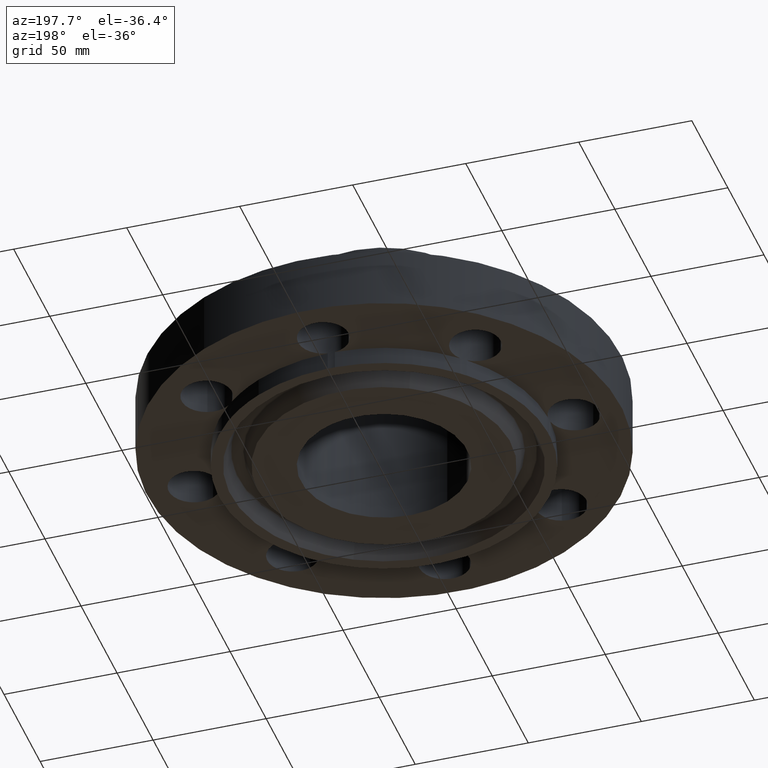
[diagram: clean part render]
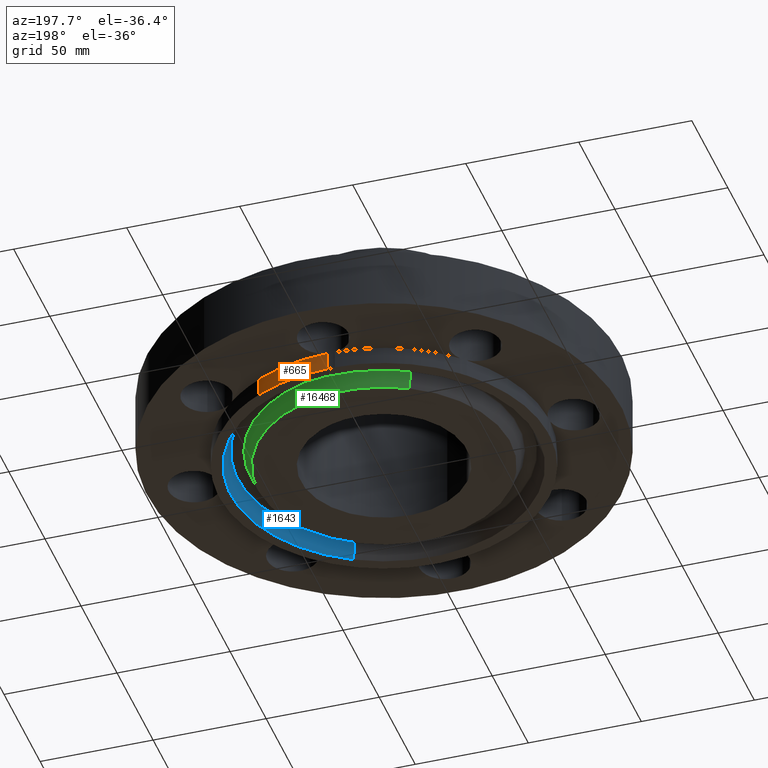
[diagram: same view with three faces highlighted in distinct colors, each labeled with its STEP entity id]
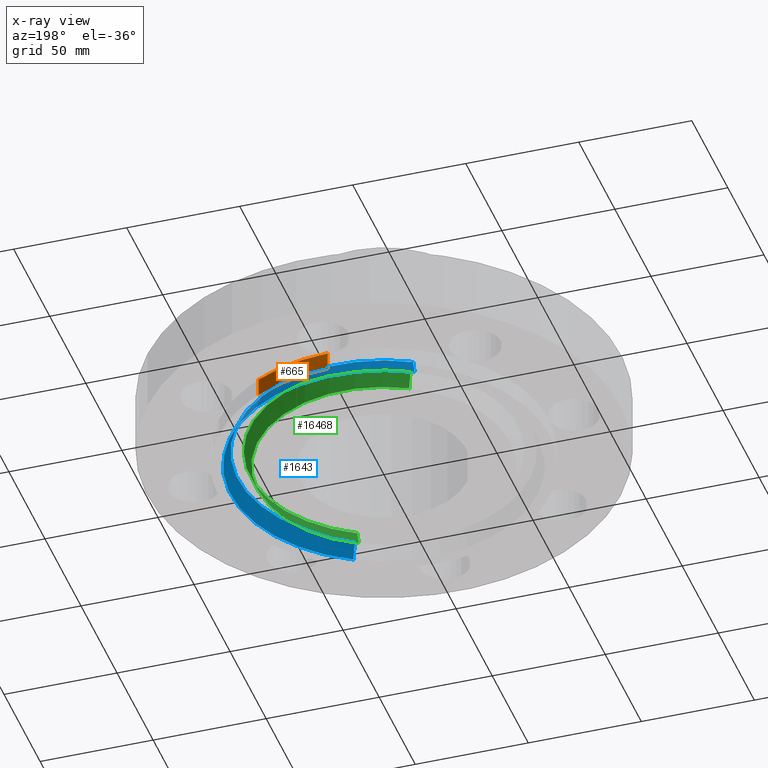
[diagram: x-ray of the same camera — body ghosted, the three highlighted faces saturated]
A machine part, auxiliary view with three faces highlighted in distinct colors.
The next image is the same camera in x-ray (body ghosted, the three faces saturated) — at least one of them is partly hidden behind the body in this view.
Their STEP definitions:

[orange] entity #665 — the highlighted cylindrical surface (partial cylindrical patch) has radius 73.025 mm, axis along (0, 0, -1).
#252=AXIS2_PLACEMENT_3D('Circle Axis2P3D',#250,#251,$) ;
#645=AXIS2_PLACEMENT_3D('Cylinder Axis2P3D',#642,#643,#644) ;
#656=AXIS2_PLACEMENT_3D('Circle Axis2P3D',#654,#655,$) ;
#92=CARTESIAN_POINT('Vertex',(0.0616409036858,2.87433912388,-3.35309033382E-011)) ;
#95=CARTESIAN_POINT('Line Origine',(0.0616409036858,2.87433912388,0.373500000005)) ;
#99=CARTESIAN_POINT('Vertex',(0.0616409036858,2.87433912388,-0.312999999991)) ;
#247=CARTESIAN_POINT('Vertex',(1.37834842349,2.52304986544,-7.95024588595E-013)) ;
#250=CARTESIAN_POINT('Axis2P3D Location',(-3.52003640584E-010,-9.5536778838E-010,0.)) ;
#642=CARTESIAN_POINT('Axis2P3D Location',(0.,0.,1.37350000001)) ;
#647=CARTESIAN_POINT('Line Origine',(1.37834842349,2.52304986544,-0.156500000016)) ;
#651=CARTESIAN_POINT('Vertex',(1.37834842349,2.52304986544,-0.313000000031)) ;
#654=CARTESIAN_POINT('Axis2P3D Location',(0.,0.,-0.313000000031)) ;
#96=DIRECTION('Vector Direction',(0.,0.,-0.0393700787402)) ;
#251=DIRECTION('Axis2P3D Direction',(0.,0.,-0.0393700787402)) ;
#643=DIRECTION('Axis2P3D Direction',(0.,0.,-0.0393700787402)) ;
#644=DIRECTION('Axis2P3D XDirection',(-0.0188750212049,-0.0345504945626,0.)) ;
#648=DIRECTION('Vector Direction',(0.,0.,-0.0393700787402)) ;
#655=DIRECTION('Axis2P3D Direction',(0.,0.,-0.0393700787402)) ;
#97=VECTOR('Line Direction',#96,0.0393700787402) ;
#649=VECTOR('Line Direction',#648,0.0393700787402) ;
#660=ORIENTED_EDGE('',*,*,#254,.T.) ;
#661=ORIENTED_EDGE('',*,*,#653,.F.) ;
#662=ORIENTED_EDGE('',*,*,#658,.F.) ;
#663=ORIENTED_EDGE('',*,*,#101,.F.) ;
#665=ADVANCED_FACE('PartBody',(#664),#646,.T.) ;
#253=CIRCLE('generated circle',#252,2.875000001) ;
#657=CIRCLE('generated circle',#656,2.87500000001) ;
#646=CYLINDRICAL_SURFACE('generated cylinder',#645,2.87500000001) ;
#101=EDGE_CURVE('',#93,#100,#98,.T.) ;
#254=EDGE_CURVE('',#93,#248,#253,.T.) ;
#653=EDGE_CURVE('',#652,#248,#650,.F.) ;
#658=EDGE_CURVE('',#100,#652,#657,.T.) ;
#659=EDGE_LOOP('',(#660,#661,#662,#663)) ;
#664=FACE_OUTER_BOUND('',#659,.T.) ;
#98=LINE('Line',#95,#97) ;
#650=LINE('Line',#647,#649) ;
#93=VERTEX_POINT('',#92) ;
#100=VERTEX_POINT('',#99) ;
#248=VERTEX_POINT('',#247) ;
#652=VERTEX_POINT('',#651) ;

[blue] entity #1643 — the highlighted conical surface has half-angle 23 deg.
#819=AXIS2_PLACEMENT_3D('Circle Axis2P3D',#817,#818,$) ;
#1630=AXIS2_PLACEMENT_3D('Cone Axis2P3D',#1627,#1628,#1629) ;
#1634=AXIS2_PLACEMENT_3D('Circle Axis2P3D',#1632,#1633,$) ;
#812=CARTESIAN_POINT('Vertex',(1.28102503915,-2.3449006054,-0.313000000001)) ;
#814=CARTESIAN_POINT('Vertex',(-1.28102503915,2.34490060534,-0.313000000001)) ;
#817=CARTESIAN_POINT('Axis2P3D Location',(4.3665228913E-011,-5.74532547521E-012,-0.313000000001)) ;
#1594=CARTESIAN_POINT('Line Origine',(-1.25109847736,2.29012040146,-0.165943667509)) ;
#1598=CARTESIAN_POINT('Vertex',(-1.22117191556,2.23534019754,-0.0188873350177)) ;
#1605=CARTESIAN_POINT('Vertex',(1.22117191556,-2.23534019754,-0.0188873350179)) ;
#1608=CARTESIAN_POINT('Line Origine',(1.25109847736,-2.29012040146,-0.165943667509)) ;
#1627=CARTESIAN_POINT('Axis2P3D Location',(0.,0.,-0.0188873350169)) ;
#1632=CARTESIAN_POINT('Axis2P3D Location',(0.,0.,-0.0188873350169)) ;
#818=DIRECTION('Axis2P3D Direction',(0.,0.,-0.0393700787402)) ;
#1595=DIRECTION('Vector Direction',(-0.00737505833566,0.0134999537303,-0.0362403485611)) ;
#1609=DIRECTION('Vector Direction',(0.00737505833566,-0.0134999537303,-0.0362403485611)) ;
#1628=DIRECTION('Axis2P3D Direction',(-0.,-0.,-0.0393700787402)) ;
#1629=DIRECTION('Axis2P3D XDirection',(-0.0188750212049,0.0345504945626,0.)) ;
#1633=DIRECTION('Axis2P3D Direction',(-0.,0.,-0.0393700787402)) ;
#1596=VECTOR('Line Direction',#1595,0.0393700787402) ;
#1610=VECTOR('Line Direction',#1609,0.0393700787402) ;
#1638=ORIENTED_EDGE('',*,*,#821,.T.) ;
#1639=ORIENTED_EDGE('',*,*,#1612,.T.) ;
#1640=ORIENTED_EDGE('',*,*,#1636,.T.) ;
#1641=ORIENTED_EDGE('',*,*,#1600,.F.) ;
#1643=ADVANCED_FACE('PartBody',(#1642),#1631,.F.) ;
#820=CIRCLE('generated circle',#819,2.672) ;
#1635=CIRCLE('generated circle',#1634,2.5471565806) ;
#1631=CONICAL_SURFACE('Cone',#1630,2.5471565806,0.401425727959) ;
#821=EDGE_CURVE('',#815,#813,#820,.T.) ;
#1600=EDGE_CURVE('',#815,#1599,#1597,.F.) ;
#1612=EDGE_CURVE('',#813,#1606,#1611,.F.) ;
#1636=EDGE_CURVE('',#1606,#1599,#1635,.F.) ;
#1637=EDGE_LOOP('',(#1638,#1639,#1640,#1641)) ;
#1642=FACE_OUTER_BOUND('',#1637,.T.) ;
#1597=LINE('Line',#1594,#1596) ;
#1611=LINE('Line',#1608,#1610) ;
#813=VERTEX_POINT('',#812) ;
#815=VERTEX_POINT('',#814) ;
#1599=VERTEX_POINT('',#1598) ;
#1606=VERTEX_POINT('',#1605) ;

[green] entity #16468 — the highlighted conical surface has half-angle 23 deg.
#5607=AXIS2_PLACEMENT_3D('Circle Axis2P3D',#5605,#5606,$) ;
#16441=AXIS2_PLACEMENT_3D('Cone Axis2P3D',#16438,#16439,#16440) ;
#16459=AXIS2_PLACEMENT_3D('Circle Axis2P3D',#16457,#16458,$) ;
#5602=CARTESIAN_POINT('Vertex',(1.11602758514,-2.0428747917,-0.0188873350179)) ;
#5605=CARTESIAN_POINT('Axis2P3D Location',(0.,0.,-0.0188873350179)) ;
#5609=CARTESIAN_POINT('Vertex',(-1.11602758514,2.0428747917,-0.0188873350164)) ;
#16438=CARTESIAN_POINT('Axis2P3D Location',(0.,0.,-0.373000000001)) ;
#16443=CARTESIAN_POINT('Line Origine',(-1.08610102335,1.98809458778,-0.16594366751)) ;
#16447=CARTESIAN_POINT('Vertex',(-1.05617446158,1.93331438389,-0.313000000001)) ;
#16450=CARTESIAN_POINT('Line Origine',(1.08610102335,-1.98809458778,-0.16594366751)) ;
#16454=CARTESIAN_POINT('Vertex',(1.05617446158,-1.93331438387,-0.313000000001)) ;
#16457=CARTESIAN_POINT('Axis2P3D Location',(0.,0.,-0.313000000002)) ;
#5606=DIRECTION('Axis2P3D Direction',(0.,0.,0.0393700787402)) ;
#16439=DIRECTION('Axis2P3D Direction',(0.,0.,0.0393700787402)) ;
#16440=DIRECTION('Axis2P3D XDirection',(0.0188750212049,-0.0345504945626,0.)) ;
#16444=DIRECTION('Vector Direction',(-0.00737505833566,0.0134999537303,0.0362403485611)) ;
#16451=DIRECTION('Vector Direction',(0.00737505833566,-0.0134999537303,0.0362403485611)) ;
#16458=DIRECTION('Axis2P3D Direction',(0.,0.,0.0393700787402)) ;
#16445=VECTOR('Line Direction',#16444,0.0393700787402) ;
#16452=VECTOR('Line Direction',#16451,0.0393700787402) ;
#16463=ORIENTED_EDGE('',*,*,#16449,.F.) ;
#16464=ORIENTED_EDGE('',*,*,#5611,.F.) ;
#16465=ORIENTED_EDGE('',*,*,#16456,.T.) ;
#16466=ORIENTED_EDGE('',*,*,#16461,.F.) ;
#16468=ADVANCED_FACE('PartBody',(#16467),#16442,.T.) ;
#5608=CIRCLE('generated circle',#5607,2.32784341942) ;
#16460=CIRCLE('generated circle',#16459,2.20300000001) ;
#16442=CONICAL_SURFACE('Cone',#16441,2.17753151104,0.401425727959) ;
#5611=EDGE_CURVE('',#5603,#5610,#5608,.T.) ;
#16449=EDGE_CURVE('',#5610,#16448,#16446,.F.) ;
#16456=EDGE_CURVE('',#5603,#16455,#16453,.F.) ;
#16461=EDGE_CURVE('',#16448,#16455,#16460,.F.) ;
#16462=EDGE_LOOP('',(#16463,#16464,#16465,#16466)) ;
#16467=FACE_OUTER_BOUND('',#16462,.T.) ;
#16446=LINE('Line',#16443,#16445) ;
#16453=LINE('Line',#16450,#16452) ;
#5603=VERTEX_POINT('',#5602) ;
#5610=VERTEX_POINT('',#5609) ;
#16448=VERTEX_POINT('',#16447) ;
#16455=VERTEX_POINT('',#16454) ;